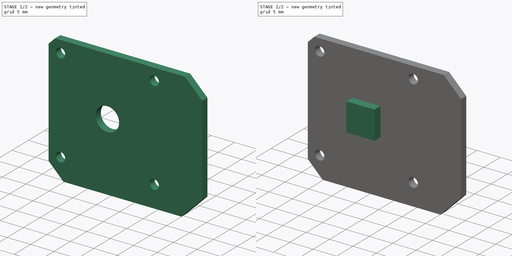
[diagram: build sequence overview — one tinted view per stage of 2, left to right]
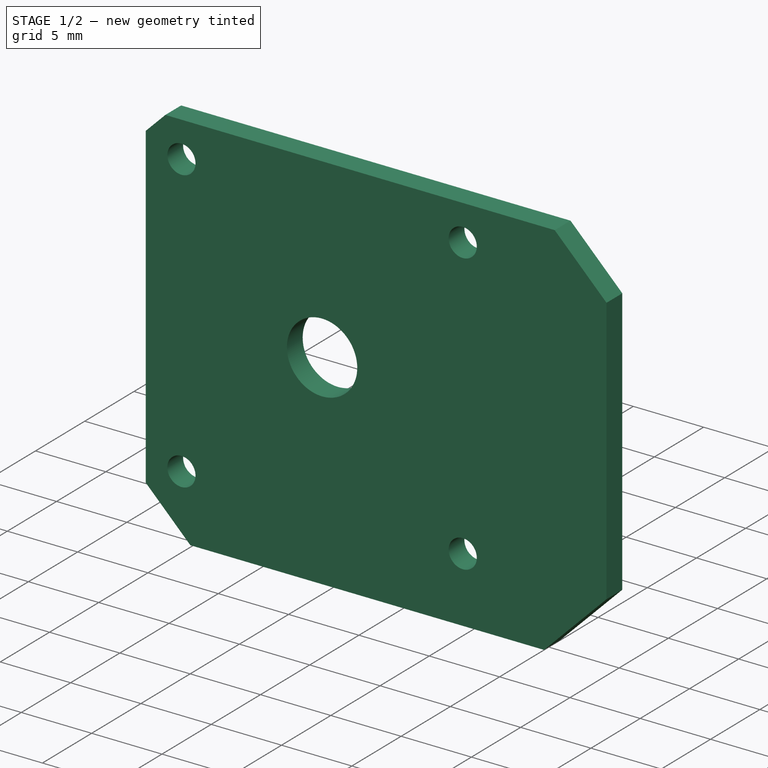
[diagram: stage 1 of 2 — iso view after this stage's code; geometry added in this stage tinted green]
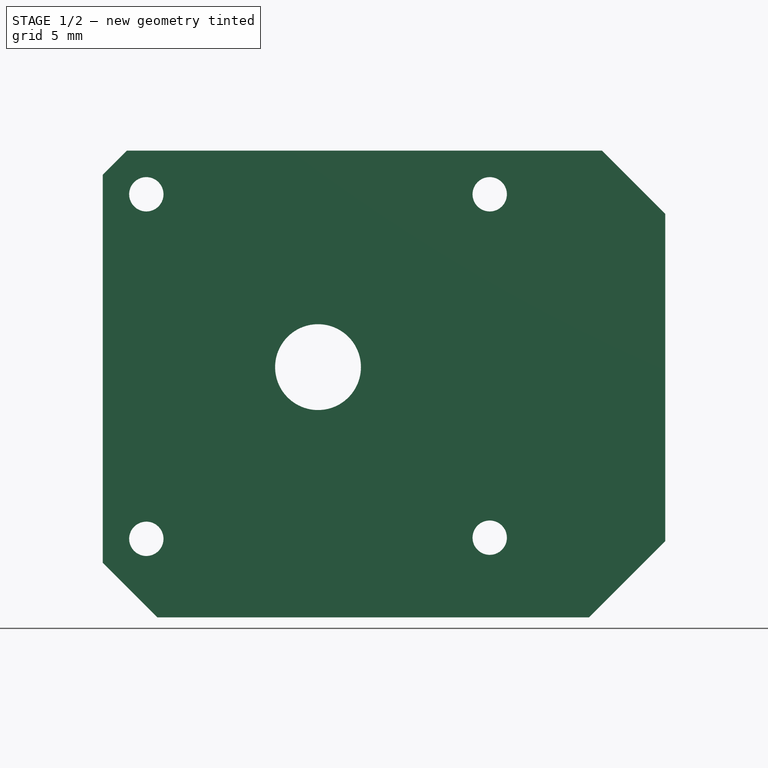
[diagram: stage 1 of 2 — front view after this stage's code; geometry added in this stage tinted green]
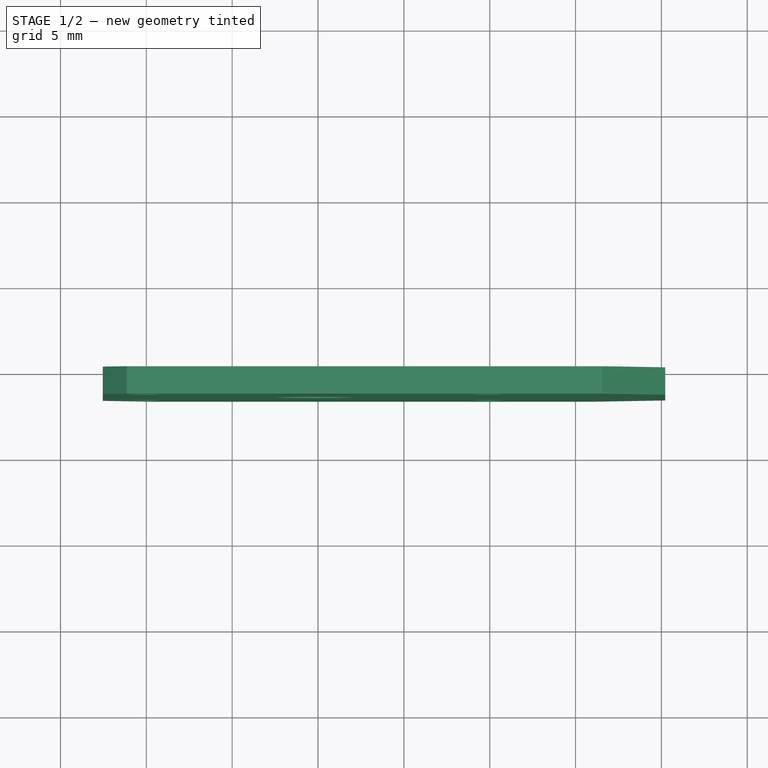
[diagram: stage 1 of 2 — top view after this stage's code; geometry added in this stage tinted green]
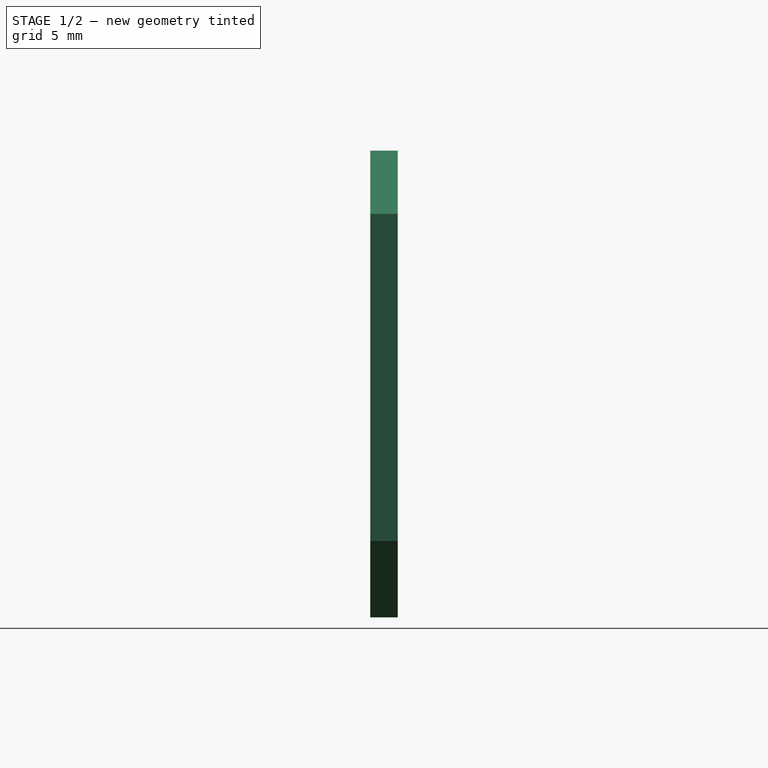
[diagram: stage 1 of 2 — right view after this stage's code; geometry added in this stage tinted green]
FCSTD DOCUMENT  (FreeCAD 0.18R16093 (Git))
Label: Encoder
License: All rights reserved
LicenseURL: http://en.wikipedia.org/wiki/All_rights_reserved
objects: Sketcher::SketchObject×2, PartDesign::Pad×2, PartDesign::Body×1
note: 7 computed .brp shape members not serialized (recipe doc carries the construction recipe); baked Part::Feature solids carry a one-line shape summary decoded from their .brp

FEATURE [Sketcher::SketchObject] Sketch154
  MapMode = 5
  Placement = pos=(0,0,0) rot=(1,0,0;1.5708rad)
  Support = -> [XZ_Plane061]
  sketch-geometry (13):
    g0: LineSegment StartX=0.634909 StartY=-4.572 StartZ=0 EndX=-2.54 EndY=-1.39709 EndZ=0
    g1: LineSegment StartX=-2.54 StartY=-1.39709 StartZ=0 EndX=-2.54 EndY=21.2089 EndZ=0
    g2: LineSegment StartX=-2.54 StartY=21.2089 StartZ=0 EndX=-1.14276 EndY=22.6062 EndZ=0
    g3: LineSegment StartX=-1.14276 StartY=22.6062 StartZ=0 EndX=26.5425 EndY=22.6062 EndZ=0
    g4: LineSegment StartX=26.5425 StartY=22.6062 StartZ=0 EndX=30.2258 EndY=18.9228 EndZ=0
    g5: LineSegment StartX=30.2258 StartY=18.9228 StartZ=0 EndX=30.2258 EndY=-0.127127 EndZ=0
    g6: LineSegment StartX=30.2258 StartY=-0.127127 StartZ=0 EndX=25.7809 EndY=-4.572 EndZ=0
    g7: LineSegment StartX=25.7809 StartY=-4.572 StartZ=0 EndX=0.634909 EndY=-4.572 EndZ=0
    g8: Circle CenterX=0 CenterY=20.0662 CenterZ=0 NormalX=0 NormalY=0 NormalZ=1 AngleXU=0 Radius=1
    g9: Circle CenterX=0 CenterY=0 CenterZ=0 NormalX=0 NormalY=0 NormalZ=1 AngleXU=0 Radius=1
    g10: Circle CenterX=20 CenterY=20.0662 CenterZ=0 NormalX=0 NormalY=0 NormalZ=1 AngleXU=0 Radius=1
    g11: Circle CenterX=20 CenterY=0.0661524 CenterZ=0 NormalX=0 NormalY=0 NormalZ=1 AngleXU=0 Radius=1
    g12: Circle CenterX=10 CenterY=10 CenterZ=0 NormalX=0 NormalY=0 NormalZ=1 AngleXU=0 Radius=2.5
  constraints (38):
    c: Coincident(g0,g1)
    c: Coincident(g1,g2)
    c: Coincident(g2,g3)
    c: Coincident(g3,g4)
    c: Coincident(g4,g5)
    c: Coincident(g5,g6)
    c: Coincident(g6,g7)
    c: Coincident(g7,g0)
    c: Vertical(g1)
    c: Vertical(g5)
    c: Horizontal(g3)
    c: Horizontal(g7)
    c: Distance(g2) = 1.976
    c: Angle(g-2,g2) = 2.35619
    c: Distance(g4) = 5.209
    c: Distance(g0) = 4.49
    c: Angle(g7,g0) = 2.35619
    c: Angle(g6,g7) = 2.35619
    c: Angle(g3,g4) = 2.35619
    c: Distance(g6) = 6.286
    c: Distance(g7) = 25.146
    c: Distance(g1) = 22.606
    c: PointOnObject(g8,g-2)
    c: Distance(g8,g1) = 2.54
    c: Distance(g8,g3) = 2.54
    c: Diameter(g8) = 2
    c: Diameter(g9) = 2
    c: DistanceY(g0,g9) = 4.572
    c: DistanceX(g8,g10) = 20
    c: Diameter(g10) = 2
    c: Distance(g10,g3) = 2.54
    c: DistanceY(g11,g10) = 20
    c: DistanceX(g9,g11) = 20
    c: Diameter(g11) = 2
    c: Coincident(g9,g-1)
    c: DistanceY(g9,g12) = 10
    c: DistanceX(g12,g11) = 10
    c: Diameter(g12) = 5
FEATURE [PartDesign::Pad] Pad078
  Length = 1.6
  Length2 = 100
  Placement = pos=(0,0,0) rot=(1,0,0;1.5708rad)
  Profile = -> Sketch154
  Type = 0
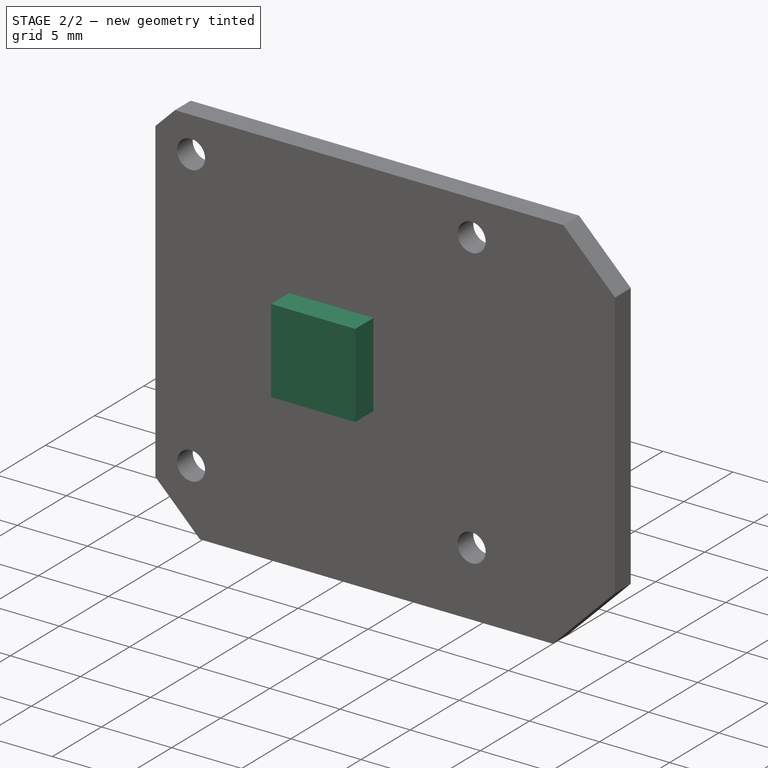
[diagram: stage 2 of 2 — iso view after this stage's code; geometry added in this stage tinted green]
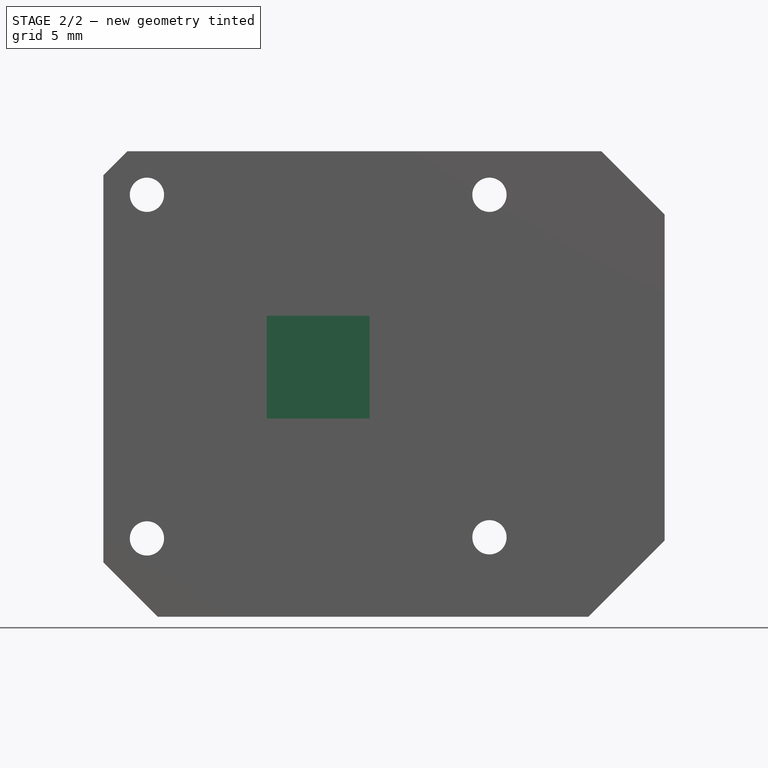
[diagram: stage 2 of 2 — front view after this stage's code; geometry added in this stage tinted green]
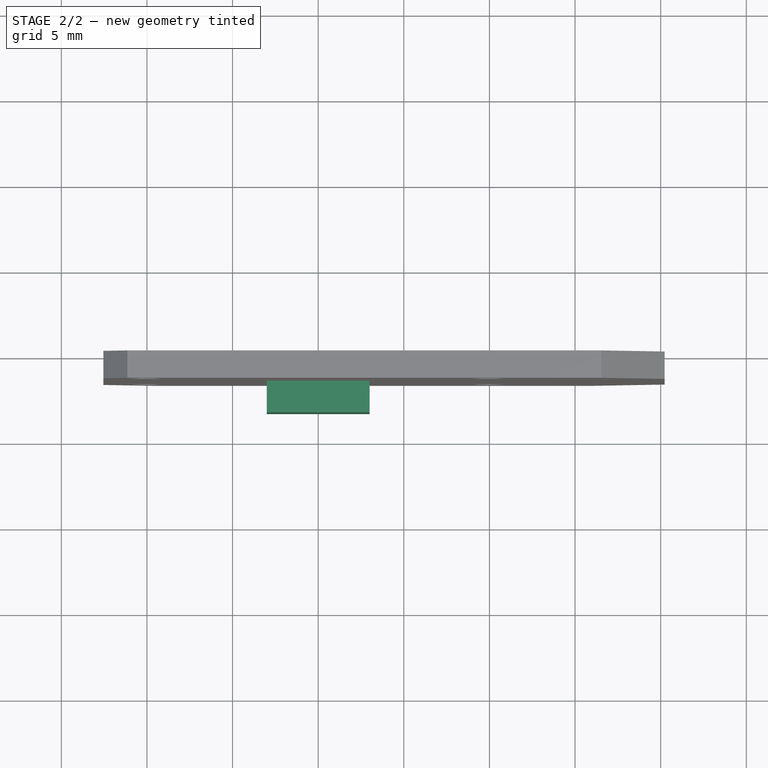
[diagram: stage 2 of 2 — top view after this stage's code; geometry added in this stage tinted green]
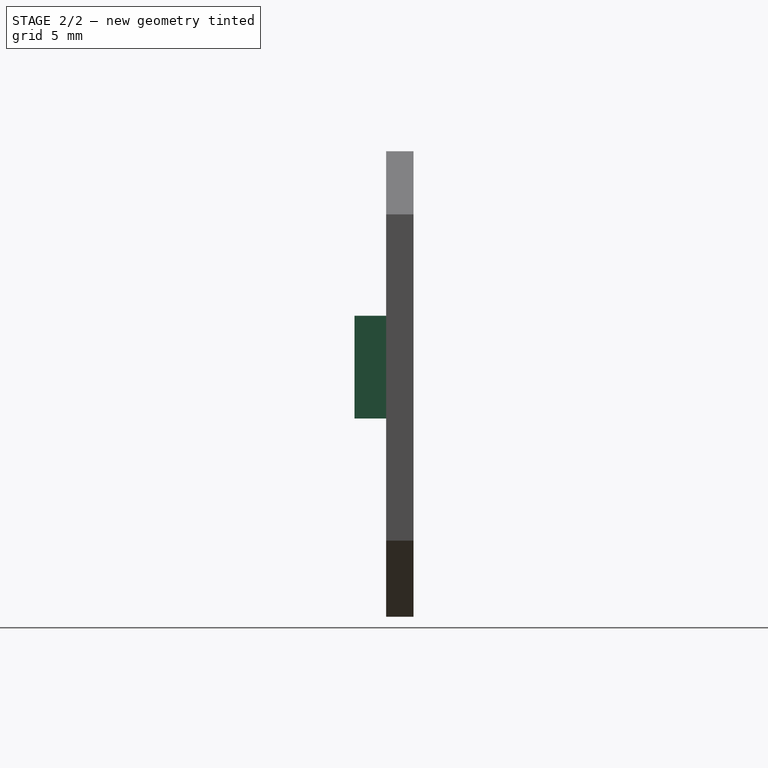
[diagram: stage 2 of 2 — right view after this stage's code; geometry added in this stage tinted green]
FEATURE [Sketcher::SketchObject] Sketch157
  ExternalGeometry = -> [Pad078]
  MapMode = 5
  Placement = pos=(0,-1.6,4e-16) rot=(1,0,0;1.5708rad)
  Support = -> [Pad078]
  sketch-geometry (4):
    g0: LineSegment StartX=7 StartY=13 StartZ=0 EndX=13 EndY=13 EndZ=0
    g1: LineSegment StartX=13 StartY=13 StartZ=0 EndX=13 EndY=7 EndZ=0
    g2: LineSegment StartX=13 StartY=7 StartZ=0 EndX=7 EndY=7 EndZ=0
    g3: LineSegment StartX=7 StartY=7 StartZ=0 EndX=7 EndY=13 EndZ=0
  constraints (11):
    c: Coincident(g0,g1)
    c: Coincident(g1,g2)
    c: Coincident(g2,g3)
    c: Coincident(g3,g0)
    c: Horizontal(g0)
    c: Vertical(g1)
    c: Symmetric(g2,g0,g-3)
    c: Vertical(g3)
    c: Horizontal(g2)
    c: DistanceY(g3,g3) = 6
    c: DistanceX(g0,g0) = 6
FEATURE [PartDesign::Pad] Pad080
  BaseFeature = -> Pad078
  Length = 1.85
  Length2 = 100
  Placement = pos=(0,0,0) rot=(1,0,0;1.5708rad)
  Profile = -> Sketch157
  Type = 0
FEATURE [PartDesign::Body] Body062  label="Encoder_board"
  Group = -> [Sketch154,Pad078,Sketch157,Pad080]
  Origin = -> Origin062
  Placement = pos=(5,12,12) rot=(0,0,1;0rad)
  Tip = -> Pad080
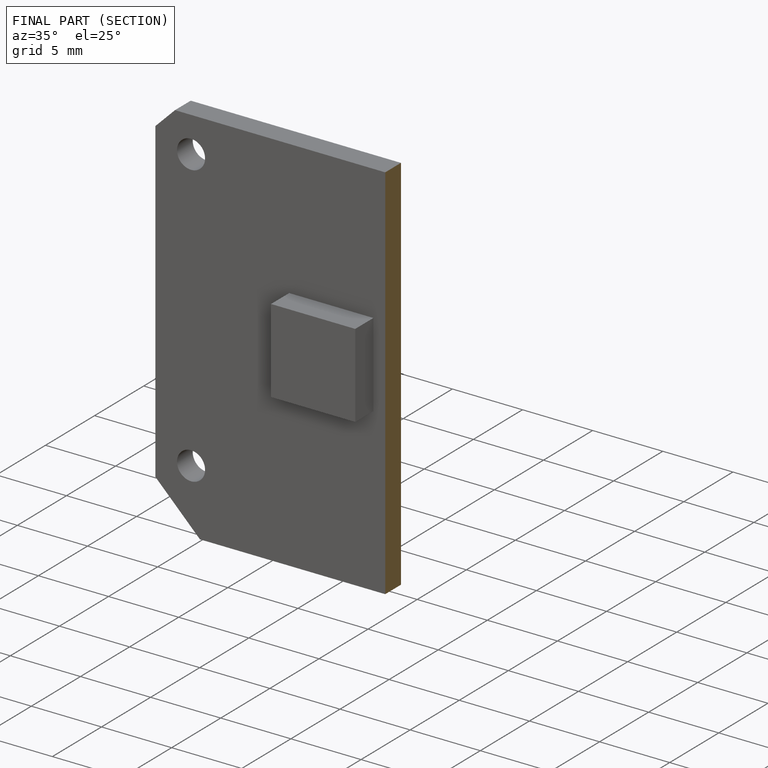
[diagram: finished part — half-section view (interior)]
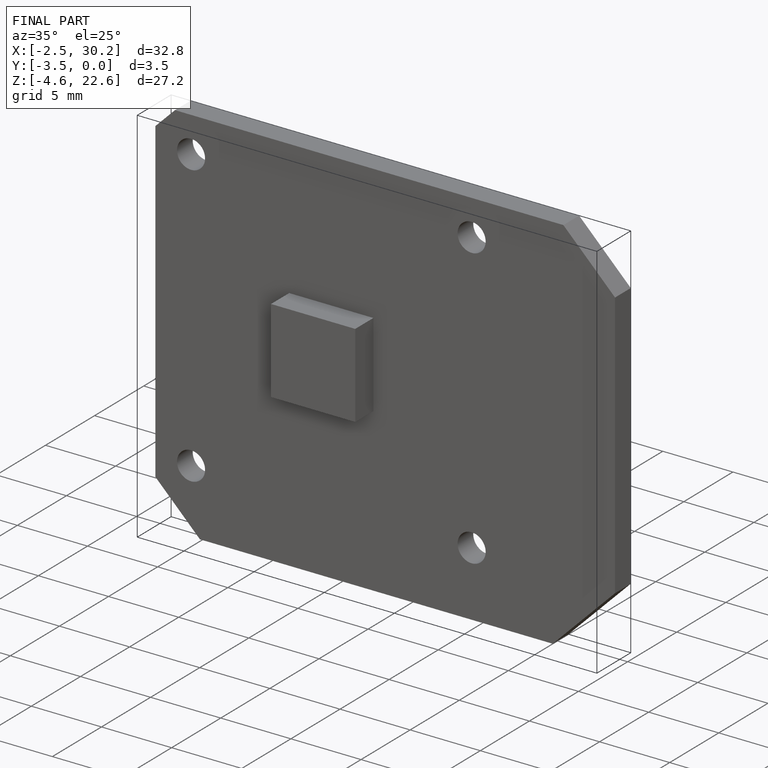
[diagram: finished part — iso view with bounding-box wireframe]
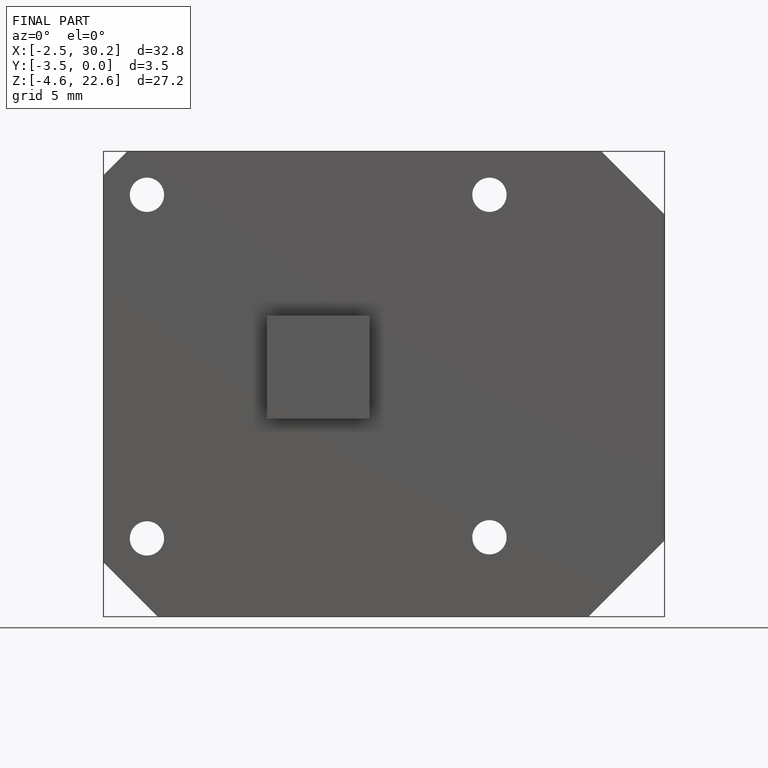
[diagram: finished part — front view with bounding-box wireframe]
